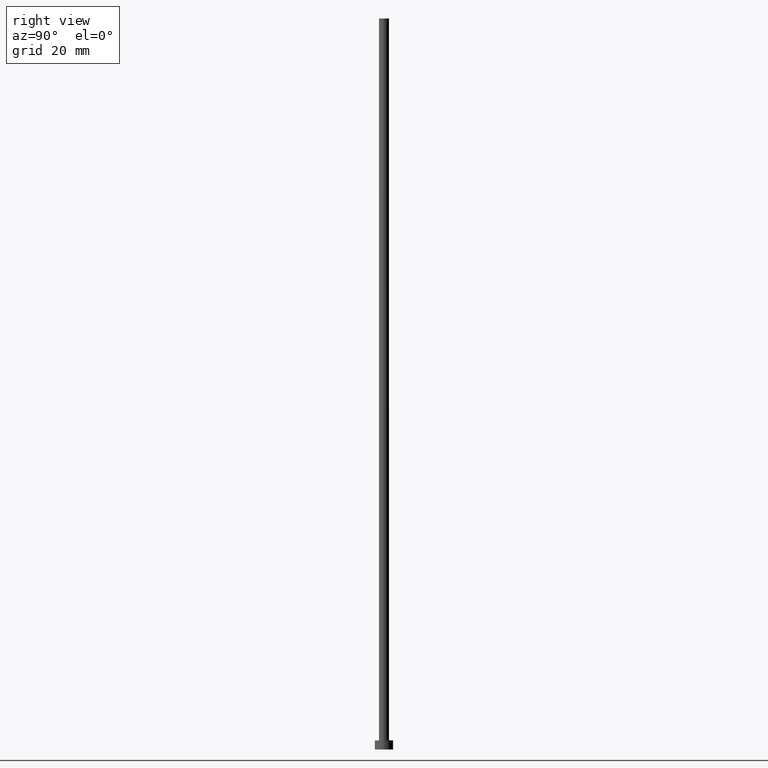
[diagram: clean part render]
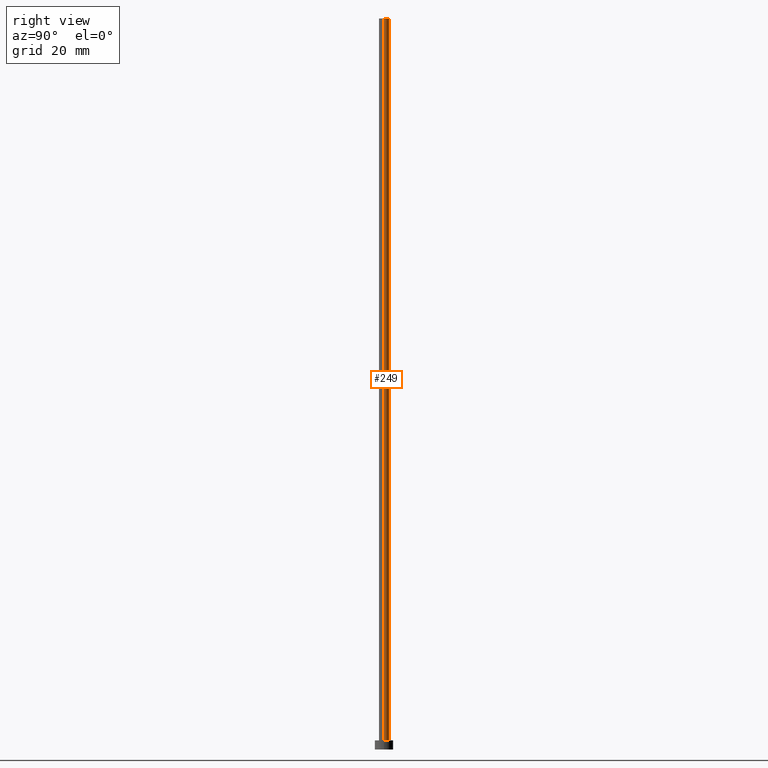
[diagram: same view with one face highlighted and labeled with its STEP entity id]
A machine part, right view. The second image highlights one B-rep face of the part: STEP entity #249.
In plain terms, the highlighted cylindrical surface (edge-blend (fillet) strip) has radius 1.1 mm, axis along (-0, -0, -1).
Its self-contained STEP definition (entity closure, byte-faithful):
#2 = LINE ( 'NONE', #237, #27 ) ;
#4 = CARTESIAN_POINT ( 'NONE',  ( -1.100000000000000089, 0.000000000000000000, 2.000000000000000000 ) ) ;
#5 = DIRECTION ( 'NONE',  ( 0.000000000000000000, 0.000000000000000000, 1.000000000000000000 ) ) ;
#6 = DIRECTION ( 'NONE',  ( -0.000000000000000000, -0.000000000000000000, -1.000000000000000000 ) ) ;
#8 = VERTEX_POINT ( 'NONE', #93 ) ;
#27 = VECTOR ( 'NONE', #112, 1000.000000000000000 ) ;
#46 = CARTESIAN_POINT ( 'NONE',  ( 1.100000000000000089, 1.347111479062088503E-16, 2.000000000000000000 ) ) ;
#50 = EDGE_LOOP ( 'NONE', ( #186, #122, #86, #207 ) ) ;
#82 = CYLINDRICAL_SURFACE ( 'NONE', #123, 1.100000000000000089 ) ;
#86 = ORIENTED_EDGE ( 'NONE', *, *, #96, .T. ) ;
#93 = CARTESIAN_POINT ( 'NONE',  ( -1.100000000000000089, 0.000000000000000000, 160.0000000000000000 ) ) ;
#96 = EDGE_CURVE ( 'NONE', #247, #184, #139, .T. ) ;
#97 = CIRCLE ( 'NONE', #212, 1.100000000000000089 ) ;
#98 = DIRECTION ( 'NONE',  ( 1.000000000000000000, 0.000000000000000000, 0.000000000000000000 ) ) ;
#102 = EDGE_CURVE ( 'NONE', #104, #247, #213, .T. ) ;
#104 = VERTEX_POINT ( 'NONE', #111 ) ;
#111 = CARTESIAN_POINT ( 'NONE',  ( 1.100000000000000089, 1.347111479062088503E-16, 160.0000000000000000 ) ) ;
#112 = DIRECTION ( 'NONE',  ( -0.000000000000000000, -0.000000000000000000, -1.000000000000000000 ) ) ;
#122 = ORIENTED_EDGE ( 'NONE', *, *, #102, .T. ) ;
#123 = AXIS2_PLACEMENT_3D ( 'NONE', #156, #6, #241 ) ;
#126 = DIRECTION ( 'NONE',  ( 1.000000000000000000, 0.000000000000000000, 0.000000000000000000 ) ) ;
#128 = VECTOR ( 'NONE', #129, 1000.000000000000000 ) ;
#129 = DIRECTION ( 'NONE',  ( -0.000000000000000000, -0.000000000000000000, -1.000000000000000000 ) ) ;
#139 = CIRCLE ( 'NONE', #216, 1.100000000000000089 ) ;
#152 = EDGE_CURVE ( 'NONE', #8, #184, #2, .T. ) ;
#156 = CARTESIAN_POINT ( 'NONE',  ( 0.000000000000000000, 0.000000000000000000, 160.0000000000000000 ) ) ;
#175 = CARTESIAN_POINT ( 'NONE',  ( 0.000000000000000000, 0.000000000000000000, 2.000000000000000000 ) ) ;
#181 = CARTESIAN_POINT ( 'NONE',  ( 0.000000000000000000, 0.000000000000000000, 160.0000000000000000 ) ) ;
#184 = VERTEX_POINT ( 'NONE', #4 ) ;
#186 = ORIENTED_EDGE ( 'NONE', *, *, #240, .F. ) ;
#207 = ORIENTED_EDGE ( 'NONE', *, *, #152, .F. ) ;
#212 = AXIS2_PLACEMENT_3D ( 'NONE', #181, #5, #98 ) ;
#213 = LINE ( 'NONE', #214, #128 ) ;
#214 = CARTESIAN_POINT ( 'NONE',  ( 1.100000000000000089, 1.347111479062088503E-16, 160.0000000000000000 ) ) ;
#216 = AXIS2_PLACEMENT_3D ( 'NONE', #175, #217, #126 ) ;
#217 = DIRECTION ( 'NONE',  ( 0.000000000000000000, 0.000000000000000000, 1.000000000000000000 ) ) ;
#224 = FACE_OUTER_BOUND ( 'NONE', #50, .T. ) ;
#237 = CARTESIAN_POINT ( 'NONE',  ( -1.100000000000000089, 0.000000000000000000, 160.0000000000000000 ) ) ;
#240 = EDGE_CURVE ( 'NONE', #104, #8, #97, .T. ) ;
#241 = DIRECTION ( 'NONE',  ( -1.000000000000000000, 0.000000000000000000, 0.000000000000000000 ) ) ;
#247 = VERTEX_POINT ( 'NONE', #46 ) ;
#249 = ADVANCED_FACE ( 'NONE', ( #224 ), #82, .T. ) ;